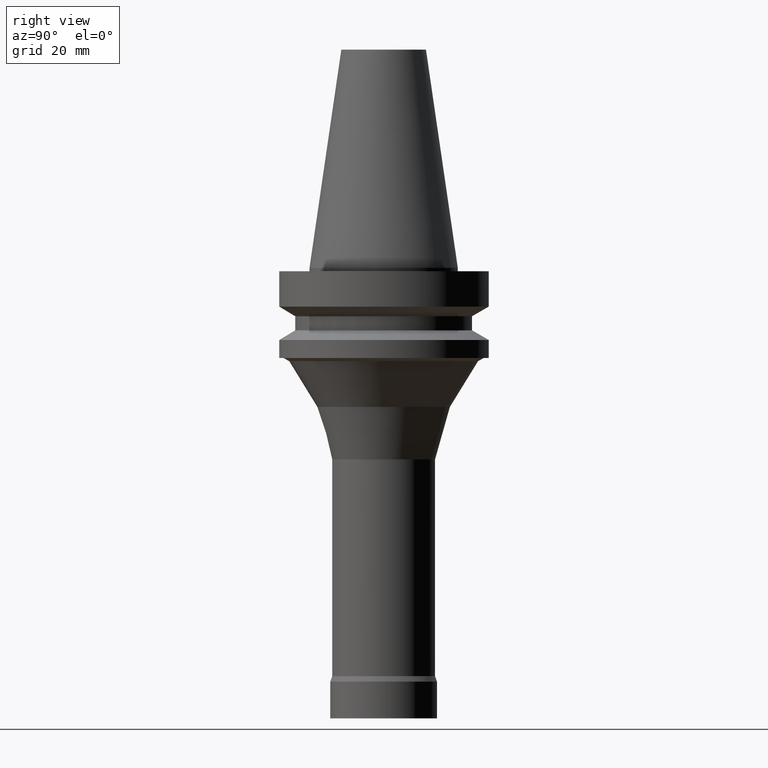
[diagram: clean part render]
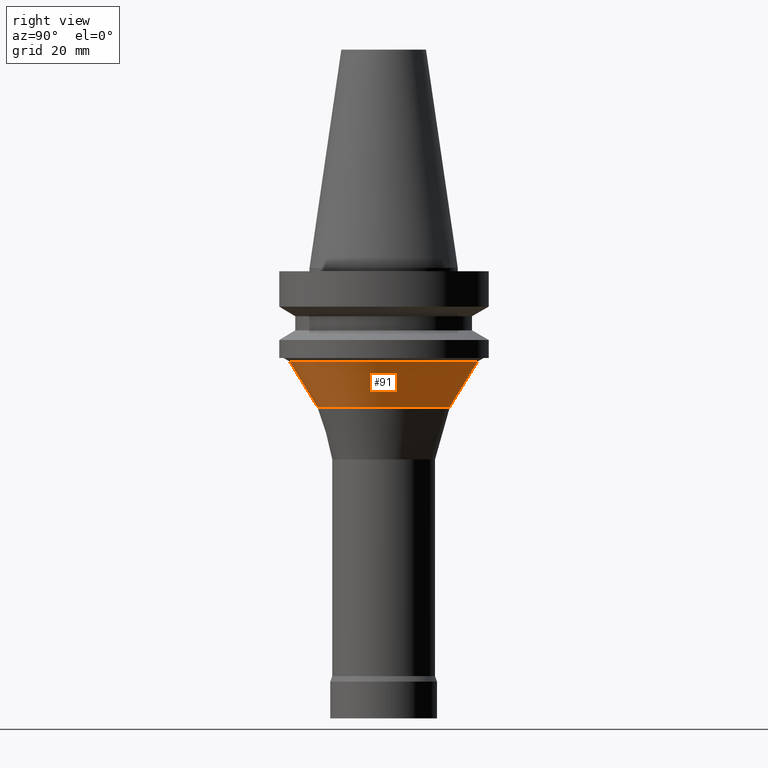
[diagram: same view with one face highlighted and labeled with its STEP entity id]
A machine part, right view. The second image highlights one B-rep face of the part: STEP entity #91.
In plain terms, the highlighted conical surface has half-angle 31.618 deg.
Its self-contained STEP definition (entity closure, byte-faithful):
#91=ADVANCED_FACE('',(#139,#140),#141,.T.);
#139=FACE_BOUND('',#188,.T.);
#140=FACE_BOUND('',#189,.T.);
#141=CONICAL_SURFACE('',#190,24.0750599779631,0.551844927886026);
#188=EDGE_LOOP('',(#269));
#189=EDGE_LOOP('',(#270));
#190=AXIS2_PLACEMENT_3D('',#271,#272,#273);
#269=ORIENTED_EDGE('',*,*,#278,.F.);
#270=ORIENTED_EDGE('',*,*,#289,.T.);
#271=CARTESIAN_POINT('',(2.1314380312708E-015,4.2628760625416E-015,-34.809024655187));
#272=DIRECTION('',(-6.12323399573677E-017,-1.22464679914735E-016,1.0));
#273=DIRECTION('',(-1.23259516440783E-032,1.0,1.22464679914735E-016));
#278=EDGE_CURVE('',#298,#298,#299,.T.);
#289=EDGE_CURVE('',#320,#320,#321,.T.);
#298=VERTEX_POINT('',#330);
#299=CIRCLE('',#331,19.8532374559262);
#320=VERTEX_POINT('',#352);
#321=CIRCLE('',#353,28.2968825);
#330=CARTESIAN_POINT('',(2.55134143706133E-015,19.8532374559262,-41.666567680374));
#331=AXIS2_PLACEMENT_3D('',#366,#367,#368);
#352=CARTESIAN_POINT('',(1.71153462548028E-015,28.2968825,-27.95148163));
#353=AXIS2_PLACEMENT_3D('',#399,#400,#401);
#366=CARTESIAN_POINT('',(2.55134143706133E-015,5.10268287412265E-015,-41.666567680374));
#367=DIRECTION('',(6.12323399573677E-017,1.22464679914735E-016,-1.0));
#368=DIRECTION('',(-1.23259516440783E-032,1.0,1.22464679914735E-016));
#399=CARTESIAN_POINT('',(1.71153462548028E-015,3.42306925096055E-015,-27.95148163));
#400=DIRECTION('',(6.12323399573677E-017,1.22464679914735E-016,-1.0));
#401=DIRECTION('',(-1.23259516440783E-032,1.0,1.22464679914735E-016));